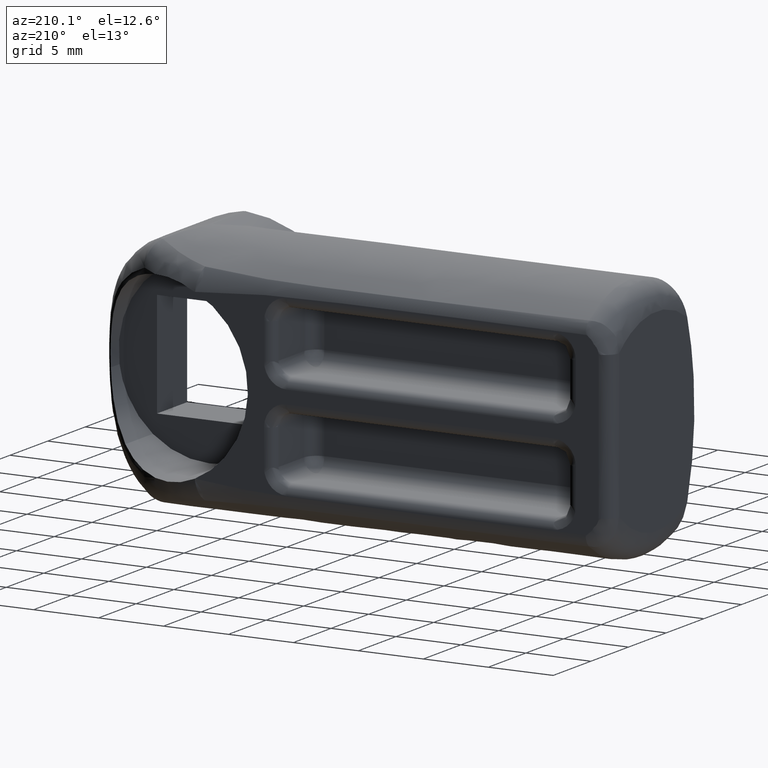
[diagram: clean part render]
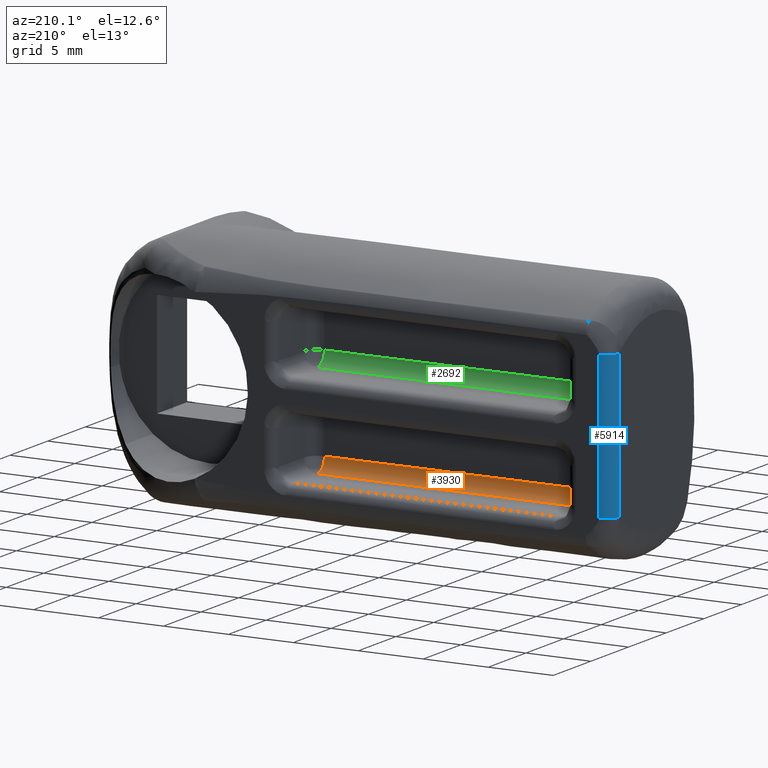
[diagram: same view with three faces highlighted in distinct colors, each labeled with its STEP entity id]
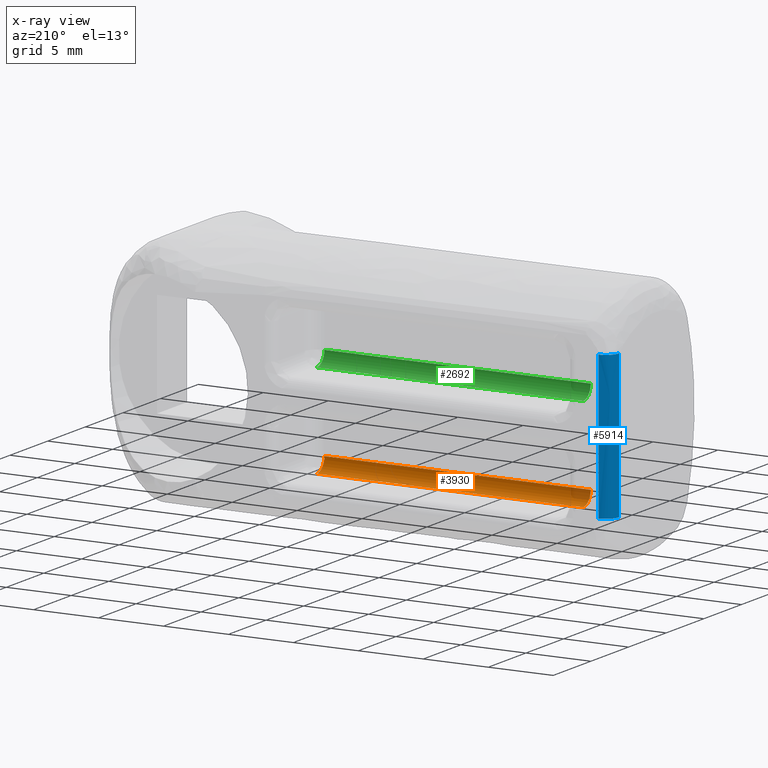
[diagram: x-ray of the same camera — body ghosted, the three highlighted faces saturated]
A machine part, auxiliary view with three faces highlighted in distinct colors.
The next image is the same camera in x-ray (body ghosted, the three faces saturated) — at least one of them is partly hidden behind the body in this view.
Their STEP definitions:

[orange] entity #3930 — the highlighted face is a freeform B-spline surface patch.
#3671=CARTESIAN_POINT('',(-30.500001496169698,-5.0,-5.000000284984750));
#3672=VERTEX_POINT('',#3671);
#3782=CARTESIAN_POINT('',(-30.500001496169698,-4.0,-6.000000284984750));
#3783=VERTEX_POINT('',#3782);
#3784=CARTESIAN_POINT('',(-30.500001496169698,-5.0,-5.000000284984750));
#3785=CARTESIAN_POINT('',(-30.500001496169695,-5.000000000000001,-6.000000284984750));
#3786=CARTESIAN_POINT('',(-30.500001496169698,-4.0,-6.000000284984750));
#3794=(BOUNDED_CURVE()B_SPLINE_CURVE(2,(#3784,#3785,#3786),.UNSPECIFIED.,.F.,.U.)CURVE()GEOMETRIC_REPRESENTATION_ITEM()QUASI_UNIFORM_CURVE()RATIONAL_B_SPLINE_CURVE((1.0,0.707106781186548,1.0))REPRESENTATION_ITEM(''));
#3795=EDGE_CURVE('',#3672,#3783,#3794,.T.);
#3859=CARTESIAN_POINT('',(-10.000000427477000,-5.0,-5.000000284984750));
#3860=VERTEX_POINT('',#3859);
#3888=CARTESIAN_POINT('',(-9.487500400759680,-4.999048221581857,-4.956380897619414));
#3889=CARTESIAN_POINT('',(-31.025314023554959,-4.999048221581857,-4.956380897619414));
#3890=CARTESIAN_POINT('',(-9.487500400759684,-5.047934490474806,-6.076060538881089));
#3891=CARTESIAN_POINT('',(-31.025314023554959,-5.047934490474806,-6.076060538881089));
#3892=CARTESIAN_POINT('',(-9.487500400759680,-3.929941917306162,-5.997543198873302));
#3893=CARTESIAN_POINT('',(-31.025314023554952,-3.929941917306162,-5.997543198873302));
#3901=(BOUNDED_SURFACE()B_SPLINE_SURFACE(1,2,((#3888,#3890,#3892),(#3889,#3891,#3893)),.UNSPECIFIED.,.F.,.F.,.U.)B_SPLINE_SURFACE_WITH_KNOTS((2,2),(3,3),(0.0,21.537813622795280),(0.0,0.994386588733364),.UNSPECIFIED.)GEOMETRIC_REPRESENTATION_ITEM()RATIONAL_B_SPLINE_SURFACE(((1.0,0.664513900638221,0.996233557100086),(1.0,0.664513900638221,0.996233557100086)))REPRESENTATION_ITEM('')SURFACE());
#3902=CARTESIAN_POINT('',(-10.000000427477000,-4.0,-6.000000284984750));
#3903=VERTEX_POINT('',#3902);
#3904=CARTESIAN_POINT('',(-10.000000427477000,-5.0,-5.000000284984750));
#3905=CARTESIAN_POINT('',(-10.000000427477000,-5.000000000000001,-6.000000284984750));
#3906=CARTESIAN_POINT('',(-10.000000427477000,-4.0,-6.000000284984750));
#3914=(BOUNDED_CURVE()B_SPLINE_CURVE(2,(#3904,#3905,#3906),.UNSPECIFIED.,.F.,.U.)CURVE()GEOMETRIC_REPRESENTATION_ITEM()QUASI_UNIFORM_CURVE()RATIONAL_B_SPLINE_CURVE((1.0,0.707106781186548,1.0))REPRESENTATION_ITEM(''));
#3915=EDGE_CURVE('',#3860,#3903,#3914,.T.);
#3916=ORIENTED_EDGE('',*,*,#3915,.T.);
#3917=CARTESIAN_POINT('',(-30.500001496169698,-4.0,-6.000000284984750));
#3918=CARTESIAN_POINT('',(-10.000000427477000,-4.0,-6.000000284984750));
#3919=QUASI_UNIFORM_CURVE('',1,(#3917,#3918),.UNSPECIFIED.,.F.,.U.);
#3920=EDGE_CURVE('',#3783,#3903,#3919,.T.);
#3921=ORIENTED_EDGE('',*,*,#3920,.F.);
#3922=ORIENTED_EDGE('',*,*,#3795,.F.);
#3923=CARTESIAN_POINT('',(-10.000000427477000,-5.0,-5.000000284984750));
#3924=CARTESIAN_POINT('',(-30.500001496169698,-5.0,-5.000000284984750));
#3925=QUASI_UNIFORM_CURVE('',1,(#3923,#3924),.UNSPECIFIED.,.F.,.U.);
#3926=EDGE_CURVE('',#3860,#3672,#3925,.T.);
#3927=ORIENTED_EDGE('',*,*,#3926,.F.);
#3928=EDGE_LOOP('',(#3916,#3921,#3922,#3927));
#3929=FACE_OUTER_BOUND('',#3928,.T.);
#3930=ADVANCED_FACE('',(#3929),#3901,.F.);

[blue] entity #5914 — the highlighted face is a freeform B-spline surface patch.
#5609=CARTESIAN_POINT('',(-35.000000276476399,-1.0,-5.590170294234301));
#5610=VERTEX_POINT('',#5609);
#5611=CARTESIAN_POINT('',(-34.000000276476449,0.0,-5.590170294234301));
#5612=VERTEX_POINT('',#5611);
#5613=CARTESIAN_POINT('',(-35.000000276476399,-1.0,-5.590170294234301));
#5614=CARTESIAN_POINT('',(-35.000000276476371,0.0,-5.590170294234294));
#5615=CARTESIAN_POINT('',(-34.000000276476399,0.0,-5.590170294234301));
#5623=(BOUNDED_CURVE()B_SPLINE_CURVE(2,(#5613,#5614,#5615),.UNSPECIFIED.,.F.,.U.)CURVE()GEOMETRIC_REPRESENTATION_ITEM()QUASI_UNIFORM_CURVE()RATIONAL_B_SPLINE_CURVE((1.0,0.707106781186548,1.0))REPRESENTATION_ITEM(''));
#5624=EDGE_CURVE('',#5610,#5612,#5623,.T.);
#5845=CARTESIAN_POINT('',(-34.000000276476399,0.0,-5.590170294234301));
#5846=CARTESIAN_POINT('',(-35.000000276476371,0.0,-5.590170294234294));
#5847=CARTESIAN_POINT('',(-35.000000276476399,-1.0,-5.590170294234301));
#5848=CARTESIAN_POINT('',(-34.000000276476399,0.0,-2.795085147117150));
#5849=CARTESIAN_POINT('',(-35.000000276476371,0.0,-2.795085147117147));
#5850=CARTESIAN_POINT('',(-35.000000276476399,-1.0,-2.795085147117150));
#5851=CARTESIAN_POINT('',(-34.000000276476399,0.0,-6.938894E-015));
#5852=CARTESIAN_POINT('',(-35.000000276476371,0.0,-6.938894E-015));
#5853=CARTESIAN_POINT('',(-35.000000276476399,-1.0,-6.938894E-015));
#5854=CARTESIAN_POINT('',(-34.000000276476399,0.0,2.795085147117140));
#5855=CARTESIAN_POINT('',(-35.000000276476371,0.0,2.795085147117133));
#5856=CARTESIAN_POINT('',(-35.000000276476399,-1.0,2.795085147117140));
#5857=CARTESIAN_POINT('',(-34.000000276476399,0.0,3.726780196156185));
#5858=CARTESIAN_POINT('',(-35.000000276476371,0.0,3.726780196156182));
#5859=CARTESIAN_POINT('',(-35.000000276476399,-1.0,3.726780196156185));
#5860=CARTESIAN_POINT('',(-34.000000276476399,0.0,4.658475245195240));
#5861=CARTESIAN_POINT('',(-35.000000276476371,0.0,4.658475245195231));
#5862=CARTESIAN_POINT('',(-35.000000276476399,-1.0,4.658475245195240));
#5863=CARTESIAN_POINT('',(-34.000000276476399,0.0,5.590170294234290));
#5864=CARTESIAN_POINT('',(-35.000000276476371,0.0,5.590170294234281));
#5865=CARTESIAN_POINT('',(-35.000000276476399,-1.0,5.590170294234290));
#5873=(BOUNDED_SURFACE()B_SPLINE_SURFACE(2,3,((#5845,#5848,#5851,#5854,#5857,#5860,#5863),(#5846,#5849,#5852,#5855,#5858,#5861,#5864),(#5847,#5850,#5853,#5856,#5859,#5862,#5865)),.UNSPECIFIED.,.F.,.F.,.U.)B_SPLINE_SURFACE_WITH_KNOTS((3,3),(4,3,4),(0.0,1.0),(0.0,8.385255441351463,11.180340588468621),.UNSPECIFIED.)GEOMETRIC_REPRESENTATION_ITEM()RATIONAL_B_SPLINE_SURFACE(((1.0,1.0,1.0,1.0,1.0,1.0,1.0),(0.707106781186548,0.707106781186548,0.707106781186548,0.707106781186548,0.707106781186548,0.707106781186548,0.707106781186548),(1.0,1.0,1.0,1.0,1.0,1.0,1.0)))REPRESENTATION_ITEM('')SURFACE());
#5874=CARTESIAN_POINT('',(-35.000000276476399,-1.0,5.590170294234270));
#5875=VERTEX_POINT('',#5874);
#5876=CARTESIAN_POINT('',(-34.000000276476399,0.0,5.590170294234290));
#5877=VERTEX_POINT('',#5876);
#5878=CARTESIAN_POINT('',(-35.000000276476449,-1.0,5.590170294234290));
#5879=CARTESIAN_POINT('',(-35.000000276476399,-1.925930E-029,5.590170294234286));
#5880=CARTESIAN_POINT('',(-34.000000276476449,0.0,5.590170294234279));
#5888=(BOUNDED_CURVE()B_SPLINE_CURVE(2,(#5878,#5879,#5880),.UNSPECIFIED.,.F.,.U.)CURVE()GEOMETRIC_REPRESENTATION_ITEM()QUASI_UNIFORM_CURVE()RATIONAL_B_SPLINE_CURVE((1.0,0.707106781186549,1.0))REPRESENTATION_ITEM(''));
#5889=EDGE_CURVE('',#5875,#5877,#5888,.T.);
#5890=ORIENTED_EDGE('',*,*,#5889,.T.);
#5891=CARTESIAN_POINT('',(-34.000000276476399,0.0,-5.590170294234301));
#5892=CARTESIAN_POINT('',(-34.000000276476399,0.0,-2.795085147117150));
#5893=CARTESIAN_POINT('',(-34.000000276476399,0.0,-6.938894E-015));
#5894=CARTESIAN_POINT('',(-34.000000276476399,0.0,2.795085147117140));
#5895=CARTESIAN_POINT('',(-34.000000276476399,0.0,3.726780196156185));
#5896=CARTESIAN_POINT('',(-34.000000276476399,0.0,4.658475245195240));
#5897=CARTESIAN_POINT('',(-34.000000276476399,0.0,5.590170294234290));
#5898=B_SPLINE_CURVE_WITH_KNOTS('',3,(#5891,#5892,#5893,#5894,#5895,#5896,#5897),.UNSPECIFIED.,.F.,.U.,(4,3,4),(0.0,0.750000000000000,1.0),.UNSPECIFIED.);
#5899=EDGE_CURVE('',#5612,#5877,#5898,.T.);
#5900=ORIENTED_EDGE('',*,*,#5899,.F.);
#5901=ORIENTED_EDGE('',*,*,#5624,.F.);
#5902=CARTESIAN_POINT('',(-35.000000276476399,-1.0,5.590170294234290));
#5903=CARTESIAN_POINT('',(-35.000000276476399,-1.0,4.658475245195240));
#5904=CARTESIAN_POINT('',(-35.000000276476399,-1.0,3.726780196156185));
#5905=CARTESIAN_POINT('',(-35.000000276476399,-1.0,2.795085147117140));
#5906=CARTESIAN_POINT('',(-35.000000276476399,-1.0,-6.938894E-015));
#5907=CARTESIAN_POINT('',(-35.000000276476399,-1.0,-2.795085147117150));
#5908=CARTESIAN_POINT('',(-35.000000276476399,-1.0,-5.590170294234301));
#5909=B_SPLINE_CURVE_WITH_KNOTS('',3,(#5902,#5903,#5904,#5905,#5906,#5907,#5908),.UNSPECIFIED.,.F.,.U.,(4,3,4),(0.0,0.250000000000000,1.0),.UNSPECIFIED.);
#5910=EDGE_CURVE('',#5875,#5610,#5909,.T.);
#5911=ORIENTED_EDGE('',*,*,#5910,.F.);
#5912=EDGE_LOOP('',(#5890,#5900,#5901,#5911));
#5913=FACE_OUTER_BOUND('',#5912,.T.);
#5914=ADVANCED_FACE('',(#5913),#5873,.T.);

[green] entity #2692 — the highlighted face is a freeform B-spline surface patch.
#2569=CARTESIAN_POINT('',(-10.000000427477000,-4.0,1.250000059371800));
#2570=VERTEX_POINT('',#2569);
#2616=CARTESIAN_POINT('',(-10.000000427477000,-5.0,2.250000059371800));
#2617=VERTEX_POINT('',#2616);
#2618=CARTESIAN_POINT('',(-10.000000427477000,-4.0,1.250000059371800));
#2619=CARTESIAN_POINT('',(-10.000000427477000,-5.000000000000001,1.250000059371800));
#2620=CARTESIAN_POINT('',(-10.000000427477000,-5.0,2.250000059371800));
#2628=(BOUNDED_CURVE()B_SPLINE_CURVE(2,(#2618,#2619,#2620),.UNSPECIFIED.,.F.,.U.)CURVE()GEOMETRIC_REPRESENTATION_ITEM()QUASI_UNIFORM_CURVE()RATIONAL_B_SPLINE_CURVE((1.0,0.707106781186548,1.0))REPRESENTATION_ITEM(''));
#2629=EDGE_CURVE('',#2570,#2617,#2628,.T.);
#2648=CARTESIAN_POINT('',(-9.487500400759680,-4.999048221581857,2.293619446737137));
#2649=CARTESIAN_POINT('',(-31.025314023554959,-4.999048221581857,2.293619446737137));
#2650=CARTESIAN_POINT('',(-9.487500400759682,-5.047934490791435,1.173939798223461));
#2651=CARTESIAN_POINT('',(-31.025314023554948,-5.047934490791435,1.173939798223461));
#2652=CARTESIAN_POINT('',(-9.487500400759680,-3.929941910886976,1.252457145934072));
#2653=CARTESIAN_POINT('',(-31.025314023554955,-3.929941910886976,1.252457145934072));
#2661=(BOUNDED_SURFACE()B_SPLINE_SURFACE(1,2,((#2648,#2650,#2652),(#2649,#2651,#2653)),.UNSPECIFIED.,.F.,.F.,.U.)B_SPLINE_SURFACE_WITH_KNOTS((2,2),(3,3),(0.0,21.537813622795280),(0.0,0.994386593013164),.UNSPECIFIED.)GEOMETRIC_REPRESENTATION_ITEM()RATIONAL_B_SPLINE_SURFACE(((1.0,0.664513899194302,0.996233559955502),(1.0,0.664513899194302,0.996233559955502)))REPRESENTATION_ITEM('')SURFACE());
#2662=CARTESIAN_POINT('',(-30.500001496169698,-4.0,1.250000059371800));
#2663=VERTEX_POINT('',#2662);
#2664=CARTESIAN_POINT('',(-30.500001496169698,-5.0,2.250000059371800));
#2665=VERTEX_POINT('',#2664);
#2666=CARTESIAN_POINT('',(-30.500001496169698,-4.0,1.250000059371800));
#2667=CARTESIAN_POINT('',(-30.500001496169695,-5.000000000000001,1.250000059371800));
#2668=CARTESIAN_POINT('',(-30.500001496169698,-5.0,2.250000059371800));
#2676=(BOUNDED_CURVE()B_SPLINE_CURVE(2,(#2666,#2667,#2668),.UNSPECIFIED.,.F.,.U.)CURVE()GEOMETRIC_REPRESENTATION_ITEM()QUASI_UNIFORM_CURVE()RATIONAL_B_SPLINE_CURVE((1.0,0.707106781186548,1.0))REPRESENTATION_ITEM(''));
#2677=EDGE_CURVE('',#2663,#2665,#2676,.T.);
#2678=ORIENTED_EDGE('',*,*,#2677,.T.);
#2679=CARTESIAN_POINT('',(-10.000000427477000,-5.0,2.250000059371800));
#2680=CARTESIAN_POINT('',(-30.500001496169698,-5.0,2.250000059371800));
#2681=QUASI_UNIFORM_CURVE('',1,(#2679,#2680),.UNSPECIFIED.,.F.,.U.);
#2682=EDGE_CURVE('',#2617,#2665,#2681,.T.);
#2683=ORIENTED_EDGE('',*,*,#2682,.F.);
#2684=ORIENTED_EDGE('',*,*,#2629,.F.);
#2685=CARTESIAN_POINT('',(-30.500001496169698,-4.0,1.250000059371800));
#2686=CARTESIAN_POINT('',(-10.000000427477000,-4.0,1.250000059371800));
#2687=QUASI_UNIFORM_CURVE('',1,(#2685,#2686),.UNSPECIFIED.,.F.,.U.);
#2688=EDGE_CURVE('',#2663,#2570,#2687,.T.);
#2689=ORIENTED_EDGE('',*,*,#2688,.F.);
#2690=EDGE_LOOP('',(#2678,#2683,#2684,#2689));
#2691=FACE_OUTER_BOUND('',#2690,.T.);
#2692=ADVANCED_FACE('',(#2691),#2661,.F.);